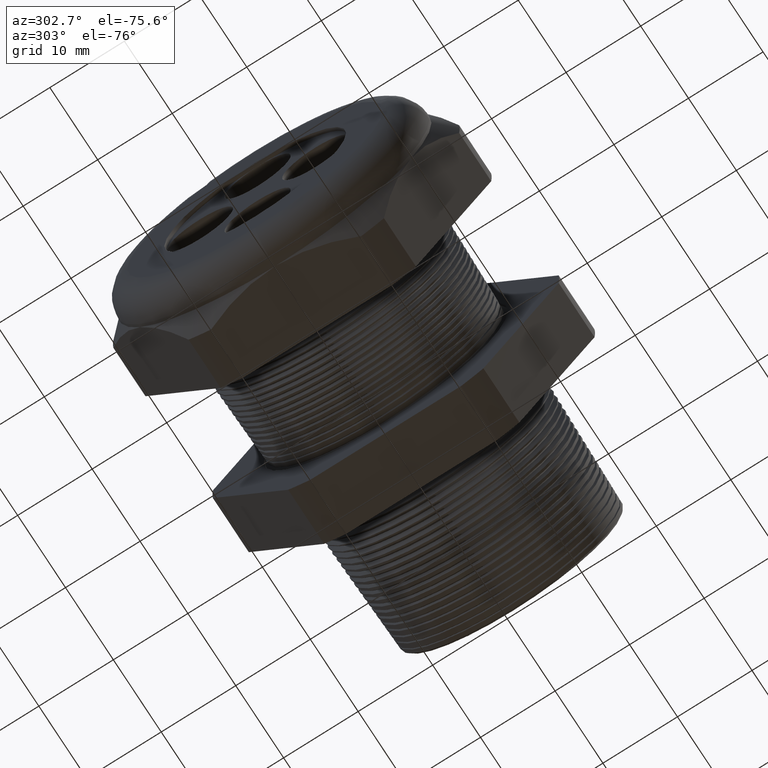
[diagram: clean part render]
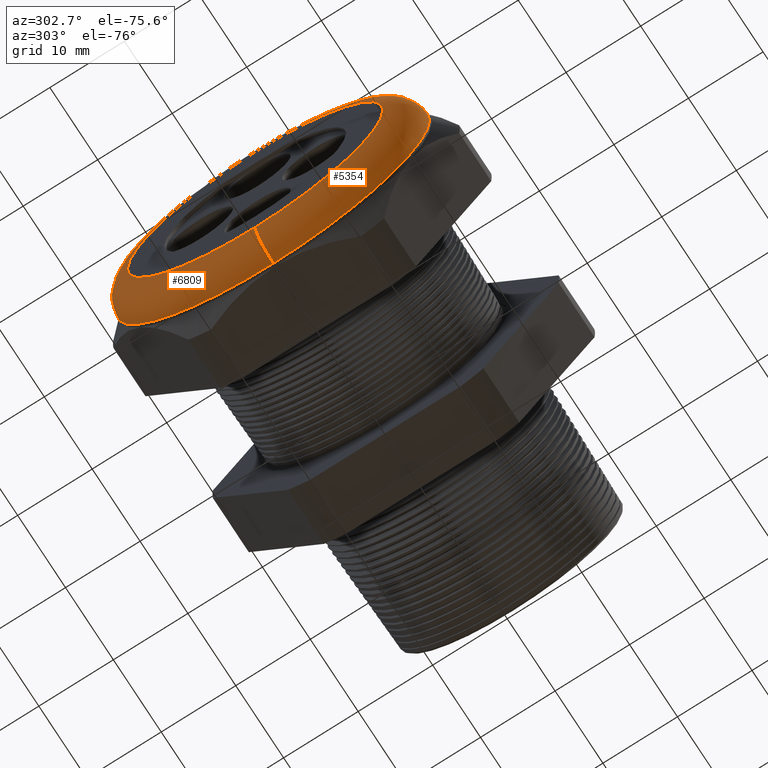
[diagram: same view with one multi-face feature highlighted, each face labeled with its STEP entity id]
A machine part, auxiliary view. The highlighted faces form ONE feature: a constant-radius fillet chain: 2 tangent blend faces with common blend radius 3.81 mm. The faces share edges in the B-rep.
Their STEP definitions:
[1] entity #5354 (Torus):
#187 = CARTESIAN_POINT ( 'NONE',  ( -1.530000000000000000, 0.0000000000000000000, -0.8249999999999998400 ) ) ;
#193 = CARTESIAN_POINT ( 'NONE',  ( -1.530000000000000000, 1.010333609296566100E-016, 0.8249999999999998400 ) ) ;
#2328 = ORIENTED_EDGE ( 'NONE', *, *, #2554, .F. ) ;
#2547 = EDGE_CURVE ( 'NONE', #6681, #2558, #3066, .T. ) ;
#2554 = EDGE_CURVE ( 'NONE', #6683, #2561, #3055, .T. ) ;
#2558 = VERTEX_POINT ( 'NONE', #3045 ) ;
#2561 = VERTEX_POINT ( 'NONE', #3043 ) ;
#3043 = CARTESIAN_POINT ( 'NONE',  ( -1.680000000000000200, 9.184850993605146000E-017, -0.6749999999999997100 ) ) ;
#3045 = CARTESIAN_POINT ( 'NONE',  ( -1.680000000000000200, 0.0000000000000000000, 0.6749999999999997100 ) ) ;
#3051 = DIRECTION ( 'NONE',  ( 0.0000000000000000000, -1.224646799147353200E-016, 1.000000000000000000 ) ) ;
#3052 = DIRECTION ( 'NONE',  ( 0.0000000000000000000, 1.000000000000000000, 1.224646799147353200E-016 ) ) ;
#3053 = CARTESIAN_POINT ( 'NONE',  ( -1.530000000000000000, 8.266365894244631900E-017, -0.6749999999999997100 ) ) ;
#3054 = AXIS2_PLACEMENT_3D ( 'NONE', #3053, #3052, #3051 ) ;
#3055 = CIRCLE ( 'NONE', #3054, 0.1499999999999999700 ) ;
#3063 = DIRECTION ( 'NONE',  ( 0.0000000000000000000, 0.0000000000000000000, -1.000000000000000000 ) ) ;
#3064 = DIRECTION ( 'NONE',  ( 0.0000000000000000000, -1.000000000000000000, 0.0000000000000000000 ) ) ;
#3065 = AXIS2_PLACEMENT_3D ( 'NONE', #3071, #3064, #3063 ) ;
#3066 = CIRCLE ( 'NONE', #3065, 0.1499999999999999700 ) ;
#3071 = CARTESIAN_POINT ( 'NONE',  ( -1.530000000000000000, 0.0000000000000000000, 0.6749999999999997100 ) ) ;
#3637 = CARTESIAN_POINT ( 'NONE',  ( -1.530000000000000000, 0.0000000000000000000, 0.0000000000000000000 ) ) ;
#3657 = DIRECTION ( 'NONE',  ( 0.0000000000000000000, 0.0000000000000000000, 1.000000000000000000 ) ) ;
#3658 = DIRECTION ( 'NONE',  ( -1.000000000000000000, 0.0000000000000000000, 0.0000000000000000000 ) ) ;
#3659 = CARTESIAN_POINT ( 'NONE',  ( -1.680000000000000200, 0.0000000000000000000, 0.0000000000000000000 ) ) ;
#3660 = AXIS2_PLACEMENT_3D ( 'NONE', #3659, #3658, #3657 ) ;
#3661 = CIRCLE ( 'NONE', #3660, 0.6749999999999997100 ) ;
#3693 = DIRECTION ( 'NONE',  ( 0.0000000000000000000, 0.0000000000000000000, 1.000000000000000000 ) ) ;
#3694 = DIRECTION ( 'NONE',  ( 1.000000000000000000, 0.0000000000000000000, 0.0000000000000000000 ) ) ;
#3695 = AXIS2_PLACEMENT_3D ( 'NONE', #3637, #3694, #3693 ) ;
#3696 = CIRCLE ( 'NONE', #3695, 0.8249999999999998400 ) ;
#3973 = DIRECTION ( 'NONE',  ( 0.0000000000000000000, 0.0000000000000000000, 1.000000000000000000 ) ) ;
#3974 = DIRECTION ( 'NONE',  ( -1.000000000000000000, 0.0000000000000000000, 0.0000000000000000000 ) ) ;
#3975 = CARTESIAN_POINT ( 'NONE',  ( -1.530000000000000000, 0.0000000000000000000, 0.0000000000000000000 ) ) ;
#3976 = AXIS2_PLACEMENT_3D ( 'NONE', #3975, #3974, #3973 ) ;
#3977 = TOROIDAL_SURFACE ( 'NONE', #3976, 0.6749999999999997100, 0.1499999999999999900 ) ;
#3978 = FACE_OUTER_BOUND ( 'NONE', #5279, .T. ) ;
#5130 = EDGE_CURVE ( 'NONE', #2561, #2558, #3661, .T. ) ;
#5144 = EDGE_CURVE ( 'NONE', #6681, #6683, #3696, .T. ) ;
#5279 = EDGE_LOOP ( 'NONE', ( #2328, #5332, #5333, #5334 ) ) ;
#5332 = ORIENTED_EDGE ( 'NONE', *, *, #5144, .F. ) ;
#5333 = ORIENTED_EDGE ( 'NONE', *, *, #2547, .T. ) ;
#5334 = ORIENTED_EDGE ( 'NONE', *, *, #5130, .F. ) ;
#5354 = ADVANCED_FACE ( 'NONE', ( #3978 ), #3977, .T. ) ;
#6681 = VERTEX_POINT ( 'NONE', #193 ) ;
#6683 = VERTEX_POINT ( 'NONE', #187 ) ;
[2] entity #6809 (Torus):
#187 = CARTESIAN_POINT ( 'NONE',  ( -1.530000000000000000, 0.0000000000000000000, -0.8249999999999998400 ) ) ;
#193 = CARTESIAN_POINT ( 'NONE',  ( -1.530000000000000000, 1.010333609296566100E-016, 0.8249999999999998400 ) ) ;
#464 = DIRECTION ( 'NONE',  ( 0.0000000000000000000, 0.0000000000000000000, 1.000000000000000000 ) ) ;
#465 = DIRECTION ( 'NONE',  ( 1.000000000000000000, 0.0000000000000000000, 0.0000000000000000000 ) ) ;
#466 = CARTESIAN_POINT ( 'NONE',  ( -1.530000000000000000, 0.0000000000000000000, 0.0000000000000000000 ) ) ;
#467 = AXIS2_PLACEMENT_3D ( 'NONE', #466, #465, #464 ) ;
#468 = CIRCLE ( 'NONE', #467, 0.8249999999999998400 ) ;
#469 = DIRECTION ( 'NONE',  ( 0.0000000000000000000, 0.0000000000000000000, 1.000000000000000000 ) ) ;
#470 = DIRECTION ( 'NONE',  ( -1.000000000000000000, 0.0000000000000000000, 0.0000000000000000000 ) ) ;
#471 = AXIS2_PLACEMENT_3D ( 'NONE', #478, #470, #469 ) ;
#472 = TOROIDAL_SURFACE ( 'NONE', #471, 0.6749999999999997100, 0.1499999999999999900 ) ;
#473 = FACE_OUTER_BOUND ( 'NONE', #6808, .T. ) ;
#478 = CARTESIAN_POINT ( 'NONE',  ( -1.530000000000000000, 0.0000000000000000000, 0.0000000000000000000 ) ) ;
#2547 = EDGE_CURVE ( 'NONE', #6681, #2558, #3066, .T. ) ;
#2553 = ORIENTED_EDGE ( 'NONE', *, *, #2547, .F. ) ;
#2554 = EDGE_CURVE ( 'NONE', #6683, #2561, #3055, .T. ) ;
#2556 = EDGE_CURVE ( 'NONE', #2558, #2561, #3050, .T. ) ;
#2558 = VERTEX_POINT ( 'NONE', #3045 ) ;
#2560 = ORIENTED_EDGE ( 'NONE', *, *, #2554, .T. ) ;
#2561 = VERTEX_POINT ( 'NONE', #3043 ) ;
#2562 = ORIENTED_EDGE ( 'NONE', *, *, #2556, .F. ) ;
#3043 = CARTESIAN_POINT ( 'NONE',  ( -1.680000000000000200, 9.184850993605146000E-017, -0.6749999999999997100 ) ) ;
#3045 = CARTESIAN_POINT ( 'NONE',  ( -1.680000000000000200, 0.0000000000000000000, 0.6749999999999997100 ) ) ;
#3046 = DIRECTION ( 'NONE',  ( 0.0000000000000000000, 0.0000000000000000000, 1.000000000000000000 ) ) ;
#3047 = DIRECTION ( 'NONE',  ( -1.000000000000000000, 0.0000000000000000000, 0.0000000000000000000 ) ) ;
#3048 = CARTESIAN_POINT ( 'NONE',  ( -1.680000000000000200, 0.0000000000000000000, 0.0000000000000000000 ) ) ;
#3049 = AXIS2_PLACEMENT_3D ( 'NONE', #3048, #3047, #3046 ) ;
#3050 = CIRCLE ( 'NONE', #3049, 0.6749999999999997100 ) ;
#3051 = DIRECTION ( 'NONE',  ( 0.0000000000000000000, -1.224646799147353200E-016, 1.000000000000000000 ) ) ;
#3052 = DIRECTION ( 'NONE',  ( 0.0000000000000000000, 1.000000000000000000, 1.224646799147353200E-016 ) ) ;
#3053 = CARTESIAN_POINT ( 'NONE',  ( -1.530000000000000000, 8.266365894244631900E-017, -0.6749999999999997100 ) ) ;
#3054 = AXIS2_PLACEMENT_3D ( 'NONE', #3053, #3052, #3051 ) ;
#3055 = CIRCLE ( 'NONE', #3054, 0.1499999999999999700 ) ;
#3063 = DIRECTION ( 'NONE',  ( 0.0000000000000000000, 0.0000000000000000000, -1.000000000000000000 ) ) ;
#3064 = DIRECTION ( 'NONE',  ( 0.0000000000000000000, -1.000000000000000000, 0.0000000000000000000 ) ) ;
#3065 = AXIS2_PLACEMENT_3D ( 'NONE', #3071, #3064, #3063 ) ;
#3066 = CIRCLE ( 'NONE', #3065, 0.1499999999999999700 ) ;
#3071 = CARTESIAN_POINT ( 'NONE',  ( -1.530000000000000000, 0.0000000000000000000, 0.6749999999999997100 ) ) ;
#6681 = VERTEX_POINT ( 'NONE', #193 ) ;
#6683 = VERTEX_POINT ( 'NONE', #187 ) ;
#6808 = EDGE_LOOP ( 'NONE', ( #6810, #2560, #2562, #2553 ) ) ;
#6809 = ADVANCED_FACE ( 'NONE', ( #473 ), #472, .T. ) ;
#6810 = ORIENTED_EDGE ( 'NONE', *, *, #6812, .F. ) ;
#6812 = EDGE_CURVE ( 'NONE', #6683, #6681, #468, .T. ) ;